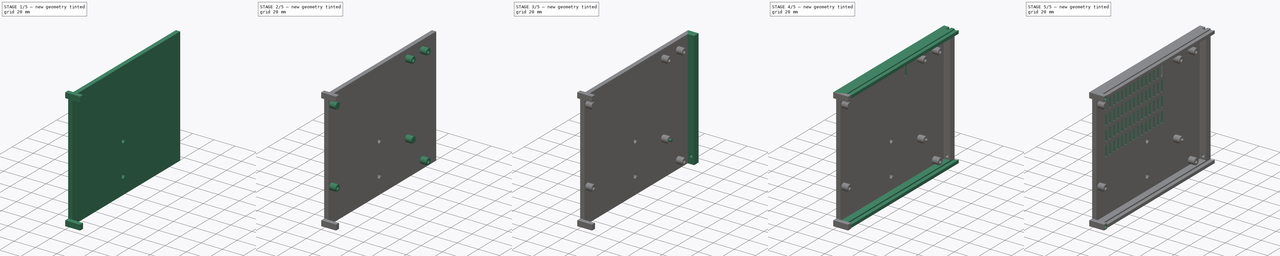
[diagram: build sequence overview — one tinted view per stage of 5, left to right]
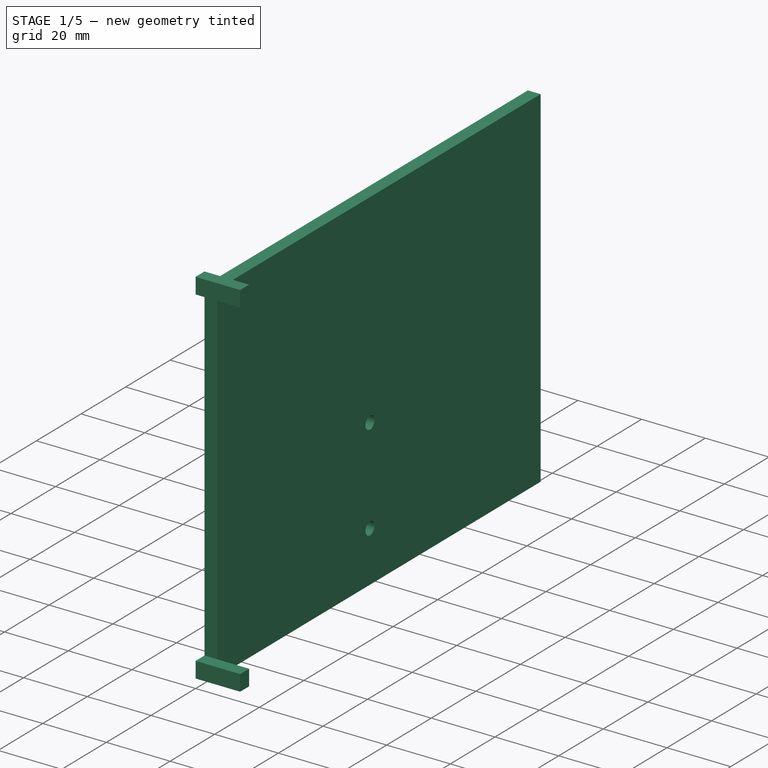
[diagram: stage 1 of 5 — iso view after this stage's code; geometry added in this stage tinted green]
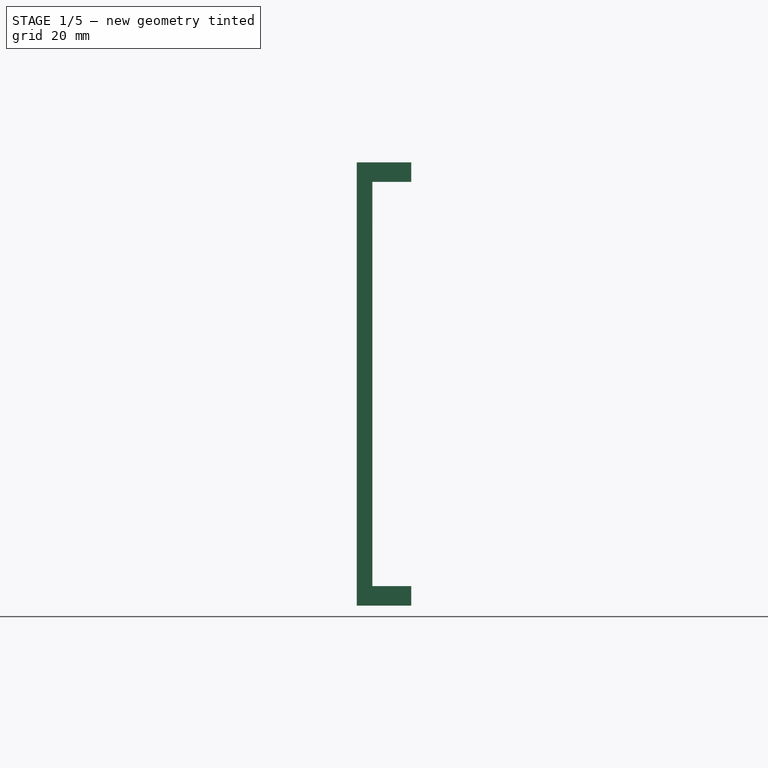
[diagram: stage 1 of 5 — front view after this stage's code; geometry added in this stage tinted green]
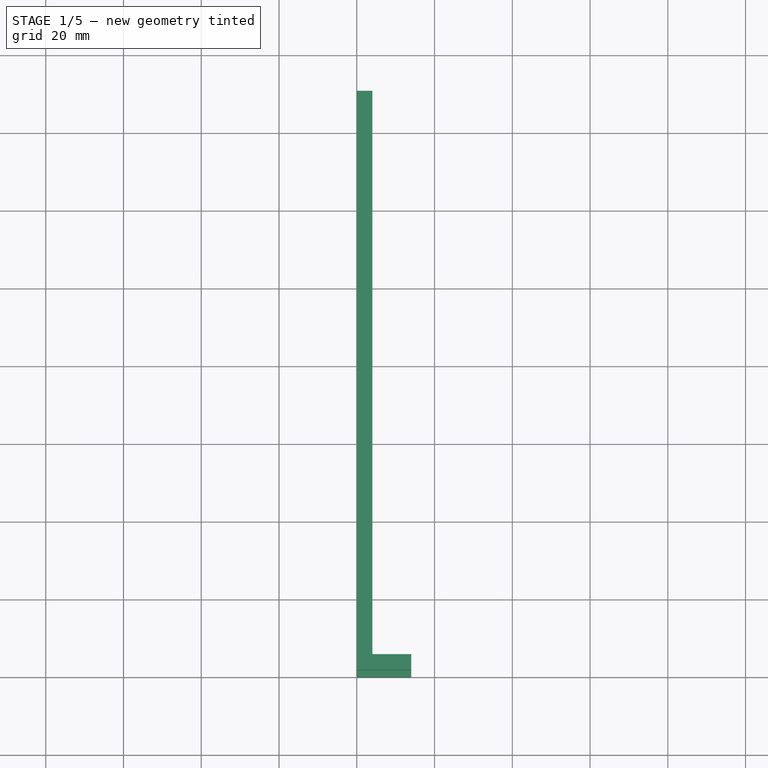
[diagram: stage 1 of 5 — top view after this stage's code; geometry added in this stage tinted green]
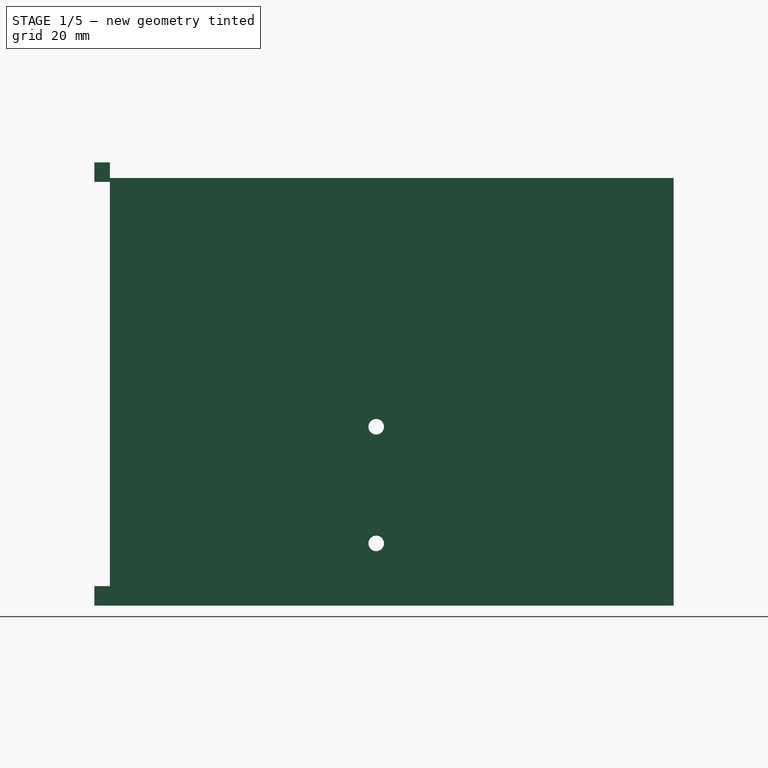
[diagram: stage 1 of 5 — right view after this stage's code; geometry added in this stage tinted green]
FCSTD DOCUMENT  (FreeCAD 1.0R38641 +468 (Git))
Label: Power-Box-Base
License: All rights reserved
LicenseURL: https://en.wikipedia.org/wiki/All_rights_reserved
objects: Sketcher::SketchObject×13, PartDesign::Pad×8, PartDesign::Pocket×6, PartDesign::LinearPattern×2, PartDesign::MultiTransform×1, PartDesign::Body×1
note: 75 computed .brp shape members not serialized (recipe doc carries the construction recipe); baked Part::Feature solids carry a one-line shape summary decoded from their .brp

FEATURE [Sketcher::SketchObject] Sketch130  label="pb-bottom"
  ArcFitTolerance = 1e-06
  AttachmentSupport = -> [YZ_Plane015]
  FullyConstrained = true
  MakeInternals = false
  MapMode = 5
  Placement = pos=(0,0,0) rot=(0.57735,0.57735,0.57735;2.0944rad)
  sketch-geometry (4):
    g0: LineSegment StartX=4 StartY=114 StartZ=0 EndX=4 EndY=4 EndZ=0
    g1: LineSegment StartX=4 StartY=4 StartZ=0 EndX=149 EndY=4 EndZ=0
    g2: LineSegment StartX=149 StartY=4 StartZ=0 EndX=149 EndY=114 EndZ=0
    g3: LineSegment StartX=149 StartY=114 StartZ=0 EndX=4 EndY=114 EndZ=0
  constraints (12):
    c: Coincident(g0,g1)
    c: Coincident(g1,g2)
    c: Coincident(g2,g3)
    c: Coincident(g3,g0)
    c: Vertical(g0)
    c: Vertical(g2)
    c: Horizontal(g1)
    c: Horizontal(g3)
    c: Distance(g0,g2) = 145
    c: Distance(g1,g3) = 110
    c: DistanceY(g-1,g0) = 4
    c: DistanceX(g-1,g0) = 4
FEATURE [PartDesign::Pad] Pad062
  Direction = (1,0,0)
  Length = 4
  Length2 = 10
  Placement = pos=(0,0,0) rot=(1,1,1;2.0944rad)
  Profile = -> Sketch130
  ReferenceAxis = -> Sketch130 [N_Axis]
  Refine = true
  Suppressed = false
  Type = 0
FEATURE [Sketcher::SketchObject] Sketch131  label="pb-back"
  ArcFitTolerance = 1e-06
  AttachmentSupport = -> [XZ_Plane015]
  FullyConstrained = true
  MakeInternals = false
  MapMode = 5
  Placement = pos=(0,0,0) rot=(1,0,0;1.5708rad)
  sketch-geometry (8):
    g0: LineSegment StartX=0 StartY=9 StartZ=0 EndX=0 EndY=4 EndZ=0
    g1: LineSegment StartX=0 StartY=4 StartZ=0 EndX=14 EndY=4 EndZ=0
    g2: LineSegment StartX=14 StartY=4 StartZ=0 EndX=14 EndY=9 EndZ=0
    g3: LineSegment StartX=14 StartY=9 StartZ=0 EndX=0 EndY=9 EndZ=0
    g4: LineSegment StartX=0 StartY=113 StartZ=0 EndX=0 EndY=118 EndZ=0
    g5: LineSegment StartX=0 StartY=118 StartZ=0 EndX=14 EndY=118 EndZ=0
    g6: LineSegment StartX=14 StartY=118 StartZ=0 EndX=14 EndY=113 EndZ=0
    g7: LineSegment StartX=14 StartY=113 StartZ=0 EndX=0 EndY=113 EndZ=0
  constraints (24):
    c: Coincident(g0,g1)
    c: Coincident(g1,g2)
    c: Coincident(g2,g3)
    c: Coincident(g3,g0)
    c: Vertical(g0)
    c: Vertical(g2)
    c: Horizontal(g1)
    c: Horizontal(g3)
    c: Distance(g0,g2) = 14
    c: Distance(g1,g3) = 5
    c: DistanceX(g-1,g0) = 0
    c: DistanceY(g-1,g0) = 4
    c: Coincident(g4,g5)
    c: Coincident(g5,g6)
    c: Coincident(g6,g7)
    c: Coincident(g7,g4)
    c: Vertical(g4)
    c: Vertical(g6)
    c: Horizontal(g5)
    c: Horizontal(g7)
    c: Distance(g4,g6) = 14
    c: Distance(g5,g7) = 5
    c: DistanceX(g-1,g4) = 0
    c: DistanceY(g-1,g4) = 118
FEATURE [PartDesign::Pad] Pad063
  BaseFeature = -> Pad062
  Direction = (0,-1,2e-16)
  Length = 4
  Length2 = 10
  Placement = pos=(0,0,0) rot=(1,1,1;2.0944rad)
  Profile = -> Sketch131
  ReferenceAxis = -> Sketch131 [N_Axis]
  Refine = true
  Reversed = true
  Suppressed = false
  Type = 0
FEATURE [Sketcher::SketchObject] Sketch134  label="pb-bottom-holes"
  ArcFitTolerance = 1e-06
  AttachmentSupport = -> [YZ_Plane015]
  FullyConstrained = true
  MakeInternals = false
  MapMode = 5
  Placement = pos=(0,0,0) rot=(0.57735,0.57735,0.57735;2.0944rad)
  sketch-geometry (2):
    g0: Circle CenterX=72.5 CenterY=50 CenterZ=0 NormalX=0 NormalY=0 NormalZ=1 AngleXU=0 Radius=2
    g1: Circle CenterX=72.5 CenterY=20 CenterZ=0 NormalX=0 NormalY=0 NormalZ=1 AngleXU=0 Radius=2
  constraints (6):
    c: Diameter(g0) = 4
    c: Diameter(g1) = 4
    c: DistanceX(g-1,g0) = 72.5
    c: DistanceY(g1,g0) = 30
    c: DistanceX(g0,g1) = 0
    c: DistanceY(g-1,g0) = 50
FEATURE [PartDesign::Pocket] Pocket079
  BaseFeature = -> Pad063
  Direction = (-1,0,0)
  Length = 5
  Length2 = 5
  Placement = pos=(0,0,0) rot=(1,1,1;2.0944rad)
  Profile = -> Sketch134
  ReferenceAxis = -> Sketch134 [N_Axis]
  Refine = true
  Reversed = true
  Suppressed = false
  Type = 1
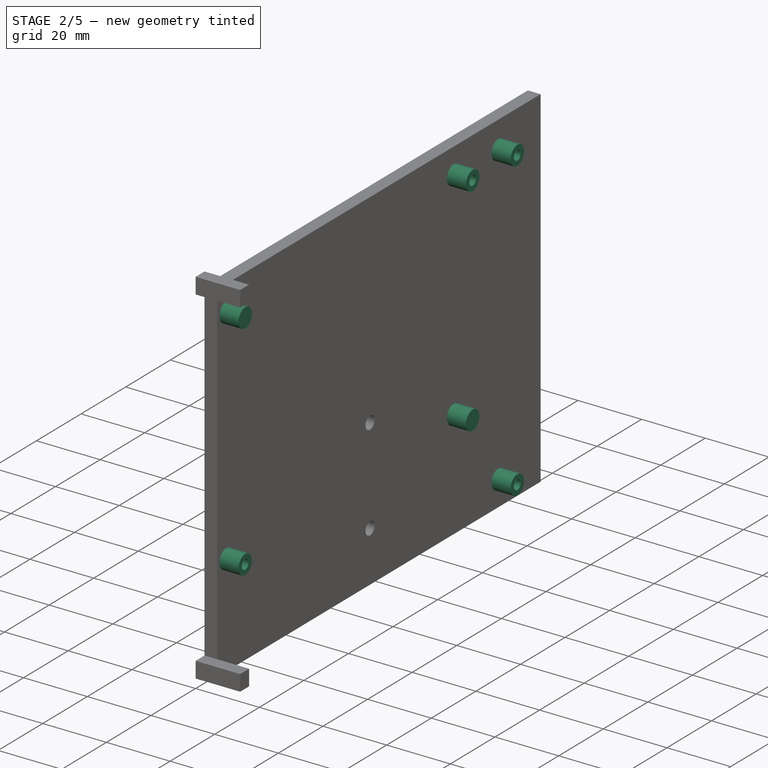
[diagram: stage 2 of 5 — iso view after this stage's code; geometry added in this stage tinted green]
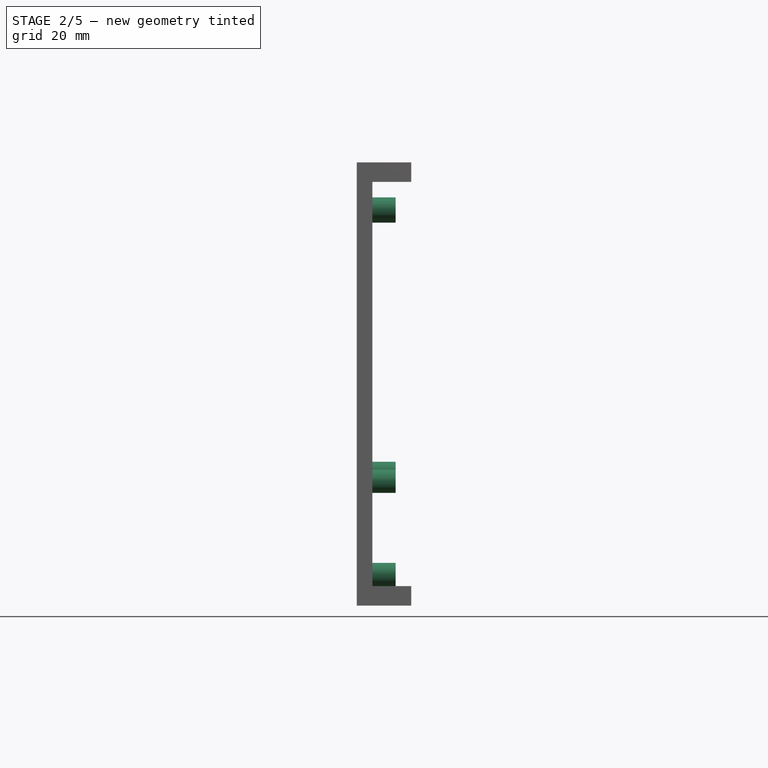
[diagram: stage 2 of 5 — front view after this stage's code; geometry added in this stage tinted green]
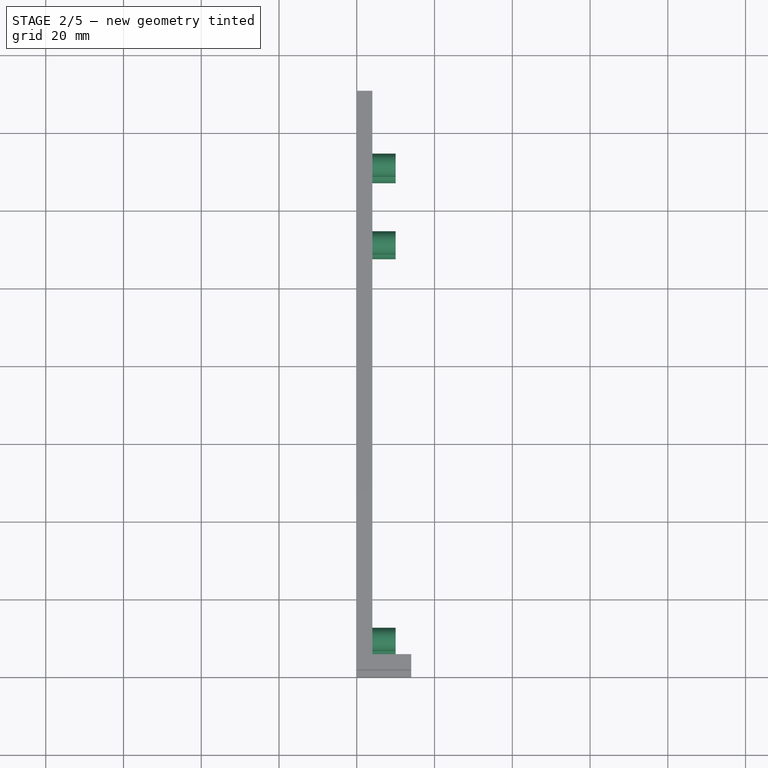
[diagram: stage 2 of 5 — top view after this stage's code; geometry added in this stage tinted green]
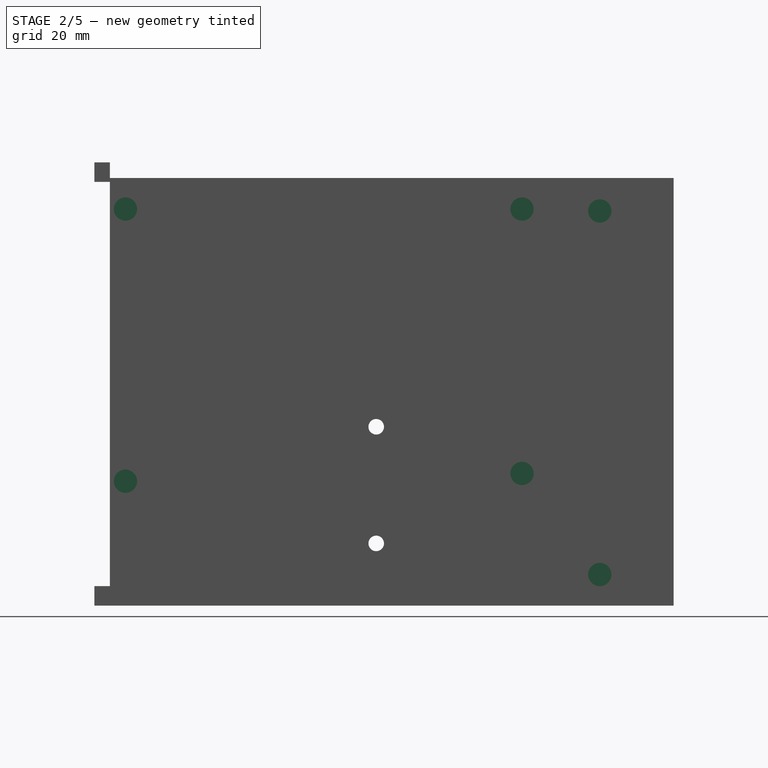
[diagram: stage 2 of 5 — right view after this stage's code; geometry added in this stage tinted green]
FEATURE [Sketcher::SketchObject] Sketch136  label="pb-bottom-screw-hill"
  ArcFitTolerance = 1e-06
  AttachmentSupport = -> [YZ_Plane015]
  FullyConstrained = true
  MakeInternals = false
  MapMode = 5
  Placement = pos=(0,0,0) rot=(0.57735,0.57735,0.57735;2.0944rad)
  sketch-geometry (5):
    g0: Circle CenterX=110 CenterY=106 CenterZ=0 NormalX=0 NormalY=0 NormalZ=1 AngleXU=0 Radius=3
    g1: Circle CenterX=8 CenterY=36 CenterZ=0 NormalX=0 NormalY=0 NormalZ=1 AngleXU=0 Radius=3
    g2: Circle CenterX=130 CenterY=105.5 CenterZ=0 NormalX=0 NormalY=0 NormalZ=1 AngleXU=0 Radius=3
    g3: Circle CenterX=130 CenterY=12 CenterZ=0 NormalX=0 NormalY=0 NormalZ=1 AngleXU=0 Radius=3
    g4: Circle CenterX=8 CenterY=106 CenterZ=0 NormalX=0 NormalY=0 NormalZ=1 AngleXU=0 Radius=3
  constraints (15):
    c: Diameter(g0) = 6
    c: DistanceX(g-1,g0) = 110
    c: DistanceY(g-1,g0) = 106
    c: Diameter(g1) = 6
    c: DistanceX(g-1,g1) = 8
    c: DistanceY(g-1,g1) = 36
    c: Diameter(g2) = 6
    c: Diameter(g3) = 6
    c: DistanceX(g-1,g3) = 130
    c: DistanceX(g3,g2) = 0
    c: DistanceY(g-1,g3) = 12
    c: DistanceY(g3,g2) = 93.5
    c: Diameter(g4) = 6
    c: DistanceY(g-1,g4) = 106
    c: DistanceX(g-1,g4) = 8
FEATURE [PartDesign::Pad] Pad065
  BaseFeature = -> Pocket079
  Direction = (1,0,0)
  Length = 10
  Length2 = 10
  Placement = pos=(0,0,0) rot=(1,1,1;2.0944rad)
  Profile = -> Sketch136
  ReferenceAxis = -> Sketch136 [N_Axis]
  Refine = true
  Suppressed = false
  Type = 0
FEATURE [Sketcher::SketchObject] Sketch137  label="pb-bottom-screw-hole"
  ArcFitTolerance = 1e-06
  AttachmentSupport = -> [Pad065]
  FullyConstrained = true
  MakeInternals = false
  MapMode = 5
  Placement = pos=(10,0,0) rot=(0.57735,0.57735,0.57735;2.0944rad)
  sketch-geometry (4):
    g0: Circle CenterX=110 CenterY=106 CenterZ=0 NormalX=0 NormalY=0 NormalZ=1 AngleXU=0 Radius=1.5
    g1: Circle CenterX=8 CenterY=36 CenterZ=0 NormalX=0 NormalY=0 NormalZ=1 AngleXU=0 Radius=1.5
    g2: Circle CenterX=130 CenterY=12 CenterZ=0 NormalX=0 NormalY=0 NormalZ=1 AngleXU=0 Radius=1.5
    g3: Circle CenterX=130 CenterY=105.5 CenterZ=0 NormalX=0 NormalY=0 NormalZ=1 AngleXU=0 Radius=1.5
  constraints (12):
    c: Diameter(g0) = 3
    c: DistanceX(g-1,g0) = 110
    c: DistanceY(g-1,g0) = 106
    c: Diameter(g1) = 3
    c: DistanceY(g-1,g1) = 36
    c: DistanceX(g-1,g1) = 8
    c: Diameter(g2) = 3
    c: Diameter(g3) = 3
    c: DistanceY(g-1,g2) = 12
    c: DistanceX(g-1,g2) = 130
    c: DistanceX(g3,g2) = 0
    c: DistanceY(g2,g3) = 93.5
FEATURE [PartDesign::Pocket] Pocket081
  BaseFeature = -> Pad065
  Direction = (-1,0,0)
  Length = 5
  Length2 = 5
  Placement = pos=(0,0,0) rot=(1,1,1;2.0944rad)
  Profile = -> Sketch137
  ReferenceAxis = -> Sketch137 [N_Axis]
  Refine = true
  Suppressed = false
  Type = 0
FEATURE [Sketcher::SketchObject] Sketch138  label="pb-bottom-fit-hole-bottom"
  ArcFitTolerance = 1e-06
  AttachmentSupport = -> [YZ_Plane015]
  FullyConstrained = true
  MakeInternals = false
  MapMode = 5
  Placement = pos=(0,0,0) rot=(0.57735,0.57735,0.57735;2.0944rad)
  sketch-geometry (1):
    g0: Circle CenterX=110 CenterY=38 CenterZ=0 NormalX=0 NormalY=0 NormalZ=1 AngleXU=0 Radius=3
  constraints (3):
    c: Diameter(g0) = 6
    c: DistanceX(g-1,g0) = 110
    c: DistanceY(g-1,g0) = 38
FEATURE [PartDesign::Pad] Pad066
  BaseFeature = -> Pocket081
  Direction = (1,0,0)
  Length = 10
  Length2 = 10
  Placement = pos=(0,0,0) rot=(1,1,1;2.0944rad)
  Profile = -> Sketch138
  ReferenceAxis = -> Sketch138 [N_Axis]
  Refine = true
  Suppressed = false
  Type = 0
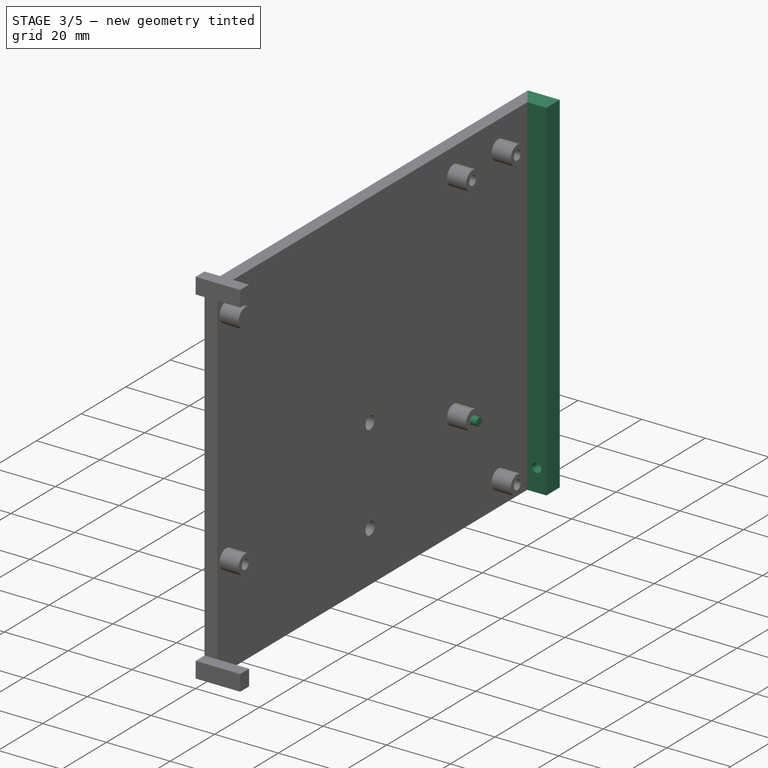
[diagram: stage 3 of 5 — iso view after this stage's code; geometry added in this stage tinted green]
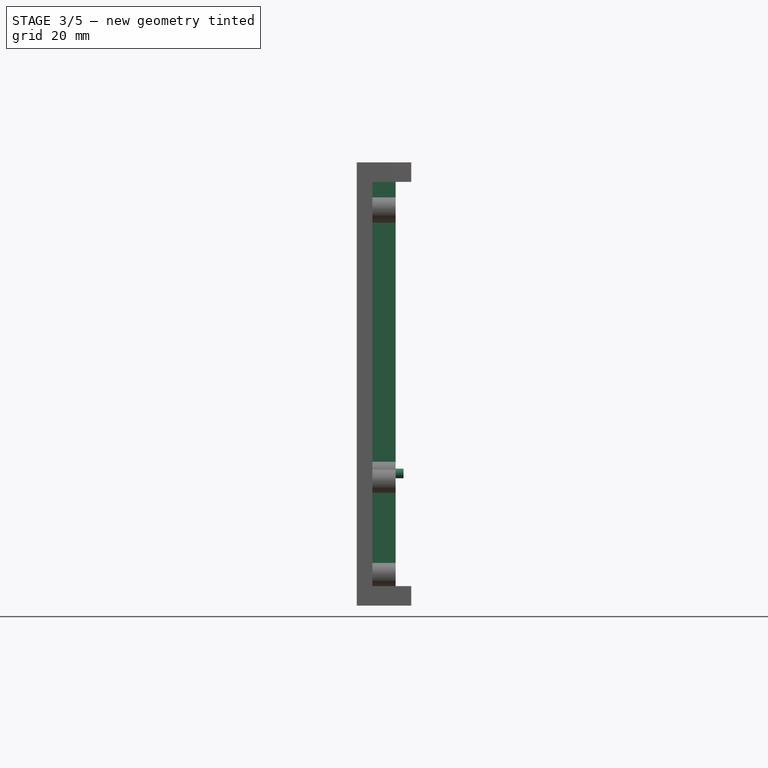
[diagram: stage 3 of 5 — front view after this stage's code; geometry added in this stage tinted green]
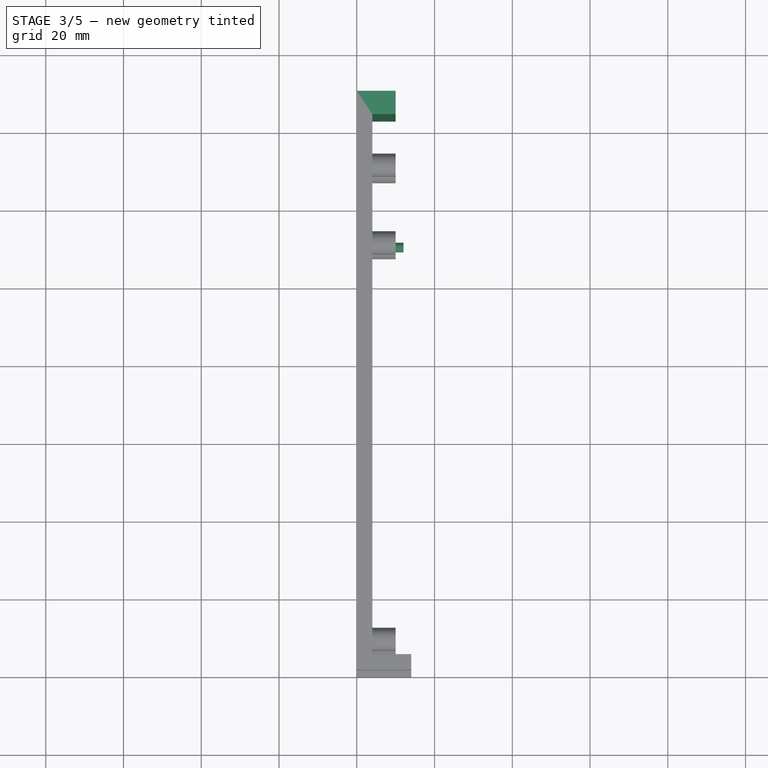
[diagram: stage 3 of 5 — top view after this stage's code; geometry added in this stage tinted green]
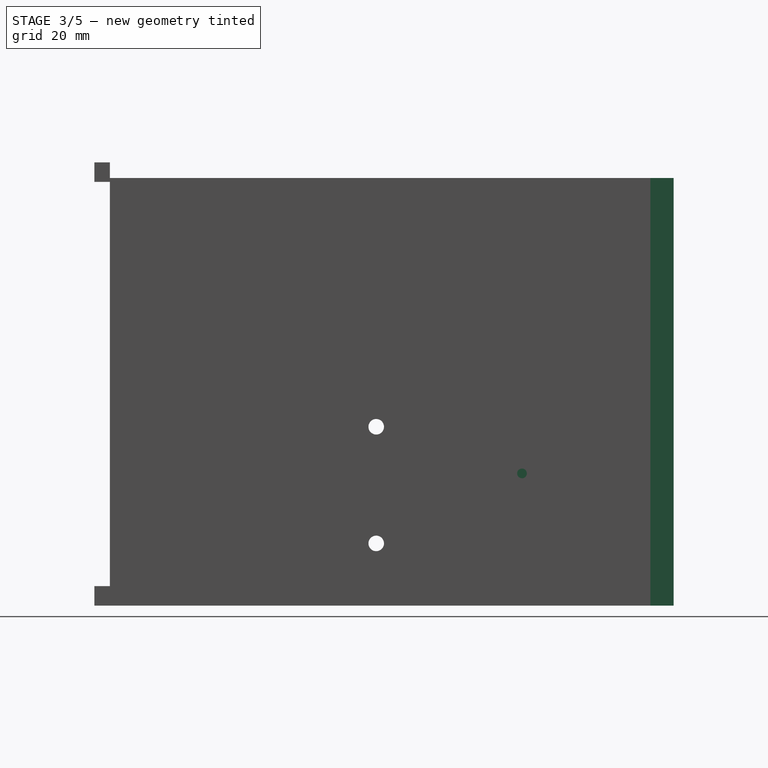
[diagram: stage 3 of 5 — right view after this stage's code; geometry added in this stage tinted green]
FEATURE [Sketcher::SketchObject] Sketch139  label="pb-bottom-fit-hill"
  ArcFitTolerance = 1e-06
  AttachmentSupport = -> [YZ_Plane015]
  FullyConstrained = true
  MakeInternals = false
  MapMode = 5
  Placement = pos=(0,0,0) rot=(0.57735,0.57735,0.57735;2.0944rad)
  sketch-geometry (1):
    g0: Circle CenterX=110 CenterY=38 CenterZ=0 NormalX=0 NormalY=0 NormalZ=1 AngleXU=0 Radius=1.25
  constraints (3):
    c: Diameter(g0) = 2.5
    c: DistanceX(g-1,g0) = 110
    c: DistanceY(g-1,g0) = 38
FEATURE [PartDesign::Pad] Pad067
  BaseFeature = -> Pad066
  Direction = (1,0,0)
  Length = 12
  Length2 = 10
  Placement = pos=(0,0,0) rot=(1,1,1;2.0944rad)
  Profile = -> Sketch139
  ReferenceAxis = -> Sketch139 [N_Axis]
  Refine = true
  Suppressed = false
  Type = 0
FEATURE [Sketcher::SketchObject] Sketch142  label="pb-front-montage"
  ArcFitTolerance = 1e-06
  FullyConstrained = true
  MakeInternals = false
  MapMode = 5
  Placement = pos=(2.606e-13,149,-1.965e-13) rot=(0.57735,0.57735,0.57735;4.18879rad)
  sketch-geometry (4):
    g0: LineSegment StartX=4 StartY=10 StartZ=0 EndX=4 EndY=4 EndZ=0
    g1: LineSegment StartX=4 StartY=4 StartZ=0 EndX=114 EndY=4 EndZ=0
    g2: LineSegment StartX=114 StartY=4 StartZ=0 EndX=114 EndY=10 EndZ=0
    g3: LineSegment StartX=114 StartY=10 StartZ=0 EndX=4 EndY=10 EndZ=0
  constraints (12):
    c: Coincident(g0,g1)
    c: Coincident(g1,g2)
    c: Coincident(g2,g3)
    c: Coincident(g3,g0)
    c: Vertical(g0)
    c: Vertical(g2)
    c: Horizontal(g1)
    c: Horizontal(g3)
    c: Distance(g0,g2) = 110
    c: Distance(g1,g3) = 6
    c: DistanceY(g-1,g0) = 4
    c: DistanceX(g-1,g0) = 4
FEATURE [PartDesign::Pad] Pad086
  BaseFeature = -> Pad067
  Direction = (1.8e-15,1,-1.8e-15)
  Length = 6
  Length2 = 10
  Placement = pos=(0,0,0) rot=(1,1,1;2.0944rad)
  Profile = -> Sketch142
  ReferenceAxis = -> Sketch142 [N_Axis]
  Refine = true
  Reversed = true
  Suppressed = false
  Type = 0
FEATURE [Sketcher::SketchObject] Sketch143  label="pb-front-montage-holes"
  ArcFitTolerance = 1e-06
  FullyConstrained = true
  MakeInternals = false
  MapMode = 5
  Placement = pos=(2.604e-13,149,-1.748e-13) rot=(0.57735,0.57735,0.57735;4.18879rad)
  sketch-geometry (1):
    g0: Circle CenterX=11 CenterY=7 CenterZ=0 NormalX=0 NormalY=0 NormalZ=1 AngleXU=0 Radius=1.4
  constraints (3):
    c: Diameter(g0) = 2.8
    c: DistanceY(g-1,g0) = 7
    c: DistanceX(g-1,g0) = 11
FEATURE [PartDesign::Pocket] Pocket105
  BaseFeature = -> Pad086
  Direction = (-1.6e-15,-1,1e-15)
  Length = 7
  Length2 = 5
  Placement = pos=(0,0,0) rot=(1,1,1;2.0944rad)
  Profile = -> Sketch143
  ReferenceAxis = -> Sketch143 [N_Axis]
  Refine = true
  Suppressed = false
  Type = 0
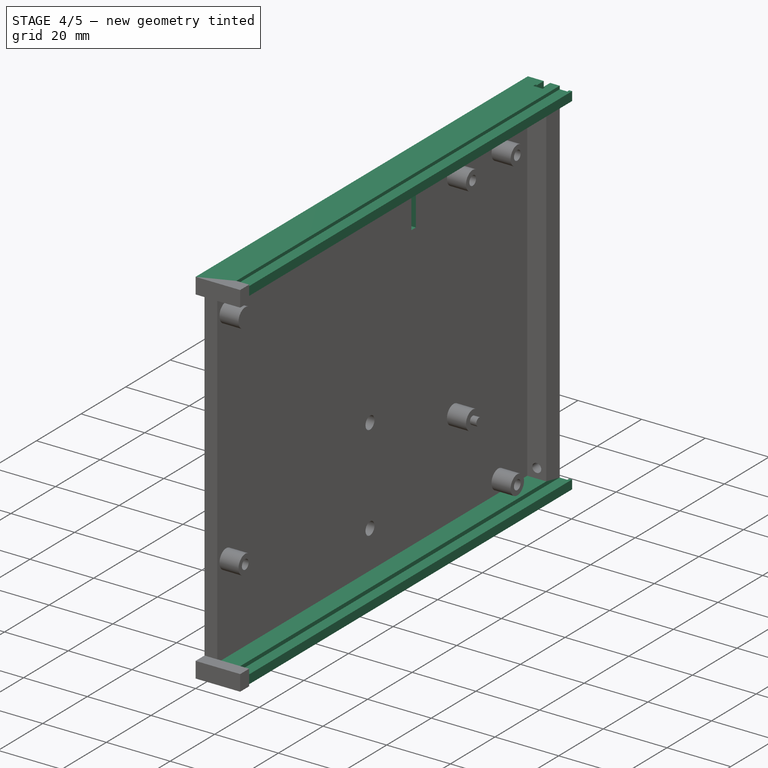
[diagram: stage 4 of 5 — iso view after this stage's code; geometry added in this stage tinted green]
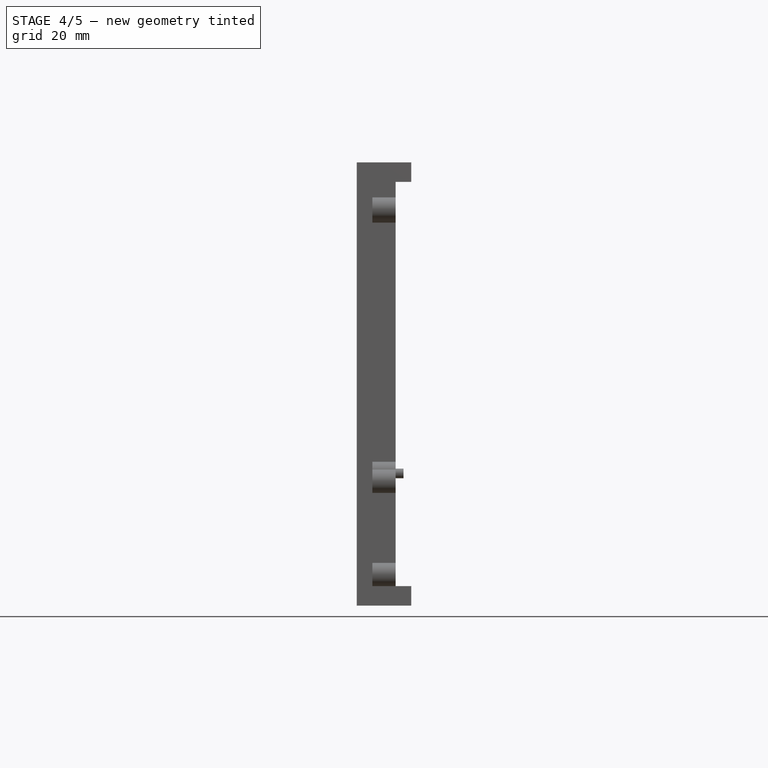
[diagram: stage 4 of 5 — front view after this stage's code; geometry added in this stage tinted green]
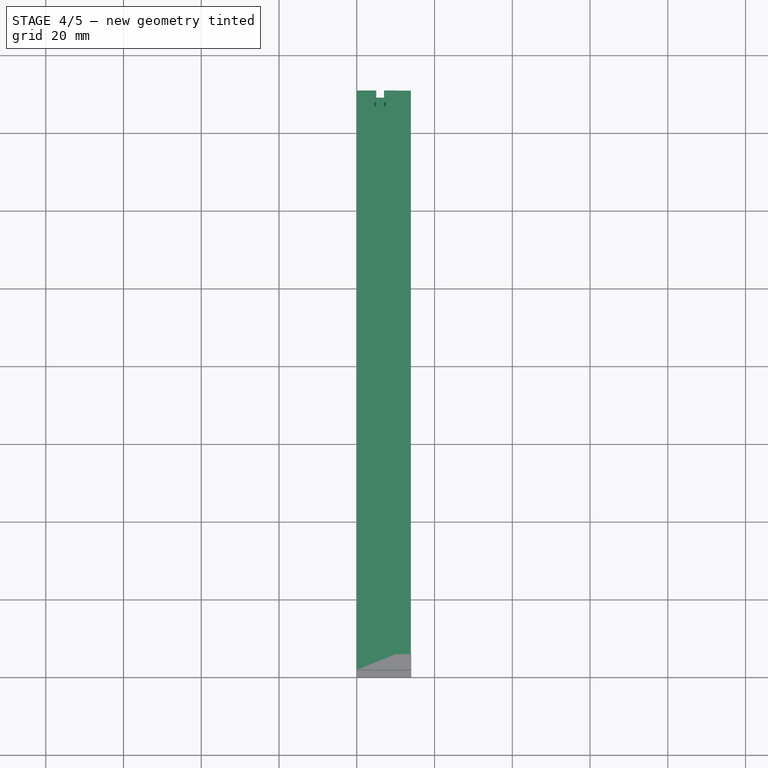
[diagram: stage 4 of 5 — top view after this stage's code; geometry added in this stage tinted green]
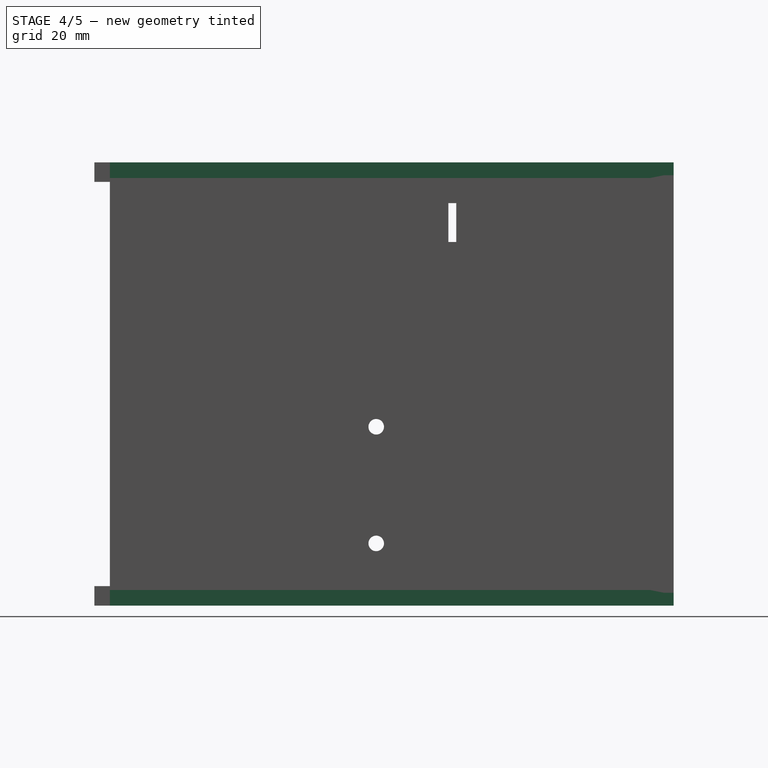
[diagram: stage 4 of 5 — right view after this stage's code; geometry added in this stage tinted green]
FEATURE [Sketcher::SketchObject] Sketch160  label="pb-bottom-mazgal"
  ArcFitTolerance = 1e-06
  AttachmentSupport = -> [YZ_Plane015]
  FullyConstrained = false
  MakeInternals = false
  MapMode = 5
  Placement = pos=(0,0,0) rot=(0.57735,0.57735,0.57735;2.0944rad)
  sketch-geometry (4):
    g0: LineSegment StartX=93.0678 StartY=97.5157 StartZ=0 EndX=93.0678 EndY=107.516 EndZ=0
    g1: LineSegment StartX=93.0678 StartY=107.516 StartZ=0 EndX=91.0678 EndY=107.516 EndZ=0
    g2: LineSegment StartX=91.0678 StartY=107.516 StartZ=0 EndX=91.0678 EndY=97.5157 EndZ=0
    g3: LineSegment StartX=91.0678 StartY=97.5157 StartZ=0 EndX=93.0678 EndY=97.5157 EndZ=0
  constraints (10):
    c: Coincident(g0,g1)
    c: Coincident(g1,g2)
    c: Coincident(g2,g3)
    c: Coincident(g3,g0)
    c: Vertical(g0)
    c: Vertical(g2)
    c: Horizontal(g1)
    c: Horizontal(g3)
    c: Distance(g0,g2) = 2
    c: Distance(g1,g3) = 10
FEATURE [PartDesign::LinearPattern] LinearPattern004
  Direction = -> Sketch160 [H_Axis]
  Length = 75
  Mode = 0
  Occurrences = 15
  Offset = 5.35714
  Placement = pos=(0,0,0) rot=(1,1,1;2.0944rad)
  Refine = true
  Reversed = true
  Suppressed = false
  TransformMode = 0
FEATURE [PartDesign::LinearPattern] LinearPattern005
  Direction = -> Sketch160 [V_Axis]
  Length = 40
  Mode = 0
  Occurrences = 4
  Offset = 13.3333
  Placement = pos=(0,0,0) rot=(1,1,1;2.0944rad)
  Refine = true
  Reversed = true
  Suppressed = false
  TransformMode = 0
FEATURE [Sketcher::SketchObject] Sketch165  label="pb-base-front-trail"
  ArcFitTolerance = 1e-06
  AttachmentSupport = -> [XY_Plane015]
  FullyConstrained = true
  MakeInternals = false
  MapMode = 5
  sketch-geometry (8):
    g0: LineSegment StartX=7.5 StartY=146 StartZ=0 EndX=7.5 EndY=145 EndZ=0
    g1: LineSegment StartX=7.5 StartY=145 StartZ=0 EndX=4.5 EndY=145 EndZ=0
    g2: LineSegment StartX=4.5 StartY=145 StartZ=0 EndX=4.5 EndY=146 EndZ=0
    g3: LineSegment StartX=4.5 StartY=146 StartZ=0 EndX=7.5 EndY=146 EndZ=0
    g4: LineSegment StartX=5 StartY=149 StartZ=0 EndX=7 EndY=149 EndZ=0
    g5: LineSegment StartX=7 StartY=149 StartZ=0 EndX=7 EndY=146 EndZ=0
    g6: LineSegment StartX=7 StartY=146 StartZ=0 EndX=5 EndY=146 EndZ=0
    g7: LineSegment StartX=5 StartY=146 StartZ=0 EndX=5 EndY=149 EndZ=0
  constraints (24):
    c: Coincident(g0,g1)
    c: Coincident(g1,g2)
    c: Coincident(g2,g3)
    c: Coincident(g3,g0)
    c: Vertical(g0)
    c: Vertical(g2)
    c: Horizontal(g1)
    c: Horizontal(g3)
    c: Distance(g0,g2) = 3
    c: Distance(g1,g3) = 1
    c: Coincident(g4,g5)
    c: Coincident(g5,g6)
    c: Coincident(g6,g7)
    c: Coincident(g7,g4)
    c: Horizontal(g4)
    c: Horizontal(g6)
    c: Vertical(g5)
    c: Vertical(g7)
    c: Distance(g5,g7) = 2
    c: Distance(g4,g6) = 3
    c: DistanceY(g-1,g2) = 146
    c: DistanceX(g-1,g2) = 4.5
    c: DistanceX(g-1,g4) = 5
    c: DistanceY(g-1,g4) = 149
FEATURE [Sketcher::SketchObject] Sketch183  label="pb-base-side-trails"
  ArcFitTolerance = 1e-06
  AttachmentSupport = -> [XZ_Plane015]
  FullyConstrained = true
  MakeInternals = false
  MapMode = 5
  Placement = pos=(0,0,0) rot=(1,0,0;1.5708rad)
  sketch-geometry (24):
    g0: LineSegment StartX=0 StartY=118 StartZ=0 EndX=0 EndY=114 EndZ=0
    g1: LineSegment StartX=0 StartY=114 StartZ=0 EndX=10 EndY=114 EndZ=0
    g2: LineSegment StartX=10 StartY=114 StartZ=0 EndX=10 EndY=118 EndZ=0
    g3: LineSegment StartX=10 StartY=118 StartZ=0 EndX=0 EndY=118 EndZ=0
    g4: LineSegment StartX=10 StartY=117 StartZ=0 EndX=10 EndY=115.2 EndZ=0
    g5: LineSegment StartX=10 StartY=115.2 StartZ=0 EndX=13 EndY=115.2 EndZ=0
    g6: LineSegment StartX=13 StartY=115.2 StartZ=0 EndX=13 EndY=117 EndZ=0
    g7: LineSegment StartX=13 StartY=117 StartZ=0 EndX=10 EndY=117 EndZ=0
    g8: LineSegment StartX=13 StartY=117.5 StartZ=0 EndX=13 EndY=114.7 EndZ=0
    g9: LineSegment StartX=13 StartY=114.7 StartZ=0 EndX=13.9 EndY=114.7 EndZ=0
    g10: LineSegment StartX=13.9 StartY=114.7 StartZ=0 EndX=13.9 EndY=117.5 EndZ=0
    g11: LineSegment StartX=13.9 StartY=117.5 StartZ=0 EndX=13 EndY=117.5 EndZ=0
    g12: LineSegment StartX=0 StartY=8 StartZ=0 EndX=0 EndY=4 EndZ=0
    g13: LineSegment StartX=0 StartY=4 StartZ=0 EndX=10 EndY=4 EndZ=0
    g14: LineSegment StartX=10 StartY=4 StartZ=0 EndX=10 EndY=8 EndZ=0
    g15: LineSegment StartX=10 StartY=8 StartZ=0 EndX=0 EndY=8 EndZ=0
    g16: LineSegment StartX=10 StartY=5 StartZ=0 EndX=10 EndY=6.8 EndZ=0
    g17: LineSegment StartX=10 StartY=6.8 StartZ=0 EndX=13 EndY=6.8 EndZ=0
    g18: LineSegment StartX=13 StartY=6.8 StartZ=0 EndX=13 EndY=5 EndZ=0
    g19: LineSegment StartX=13 StartY=5 StartZ=0 EndX=10 EndY=5 EndZ=0
    g20: LineSegment StartX=13 StartY=7.3 StartZ=0 EndX=13 EndY=4.5 EndZ=0
    g21: LineSegment StartX=13 StartY=4.5 StartZ=0 EndX=13.9 EndY=4.5 EndZ=0
    g22: LineSegment StartX=13.9 StartY=4.5 StartZ=0 EndX=13.9 EndY=7.3 EndZ=0
    g23: LineSegment StartX=13.9 StartY=7.3 StartZ=0 EndX=13 EndY=7.3 EndZ=0
  constraints (72):
    c: Coincident(g0,g1)
    c: Coincident(g1,g2)
    c: Coincident(g2,g3)
    c: Coincident(g3,g0)
    c: Vertical(g0)
    c: Vertical(g2)
    c: Horizontal(g1)
    c: Horizontal(g3)
    c: Distance(g0,g2) = 10
    c: Distance(g1,g3) = 4
    c: DistanceX(g-1,g0) = 0
    c: DistanceY(g-1,g0) = 114
    c: Coincident(g4,g5)
    c: Coincident(g5,g6)
    c: Coincident(g6,g7)
    c: Coincident(g7,g4)
    c: Vertical(g4)
    c: Vertical(g6)
    c: Horizontal(g5)
    c: Horizontal(g7)
    c: Distance(g4,g6) = 3
    c: Distance(g5,g7) = 1.8
    c: DistanceX(g2,g4) = 0
    c: Coincident(g8,g9)
    c: Coincident(g9,g10)
    c: Coincident(g10,g11)
    c: Coincident(g11,g8)
    c: Vertical(g8)
    c: Vertical(g10)
    c: Horizontal(g9)
    c: Horizontal(g11)
    c: Distance(g8,g10) = 0.9
    c: Distance(g9,g11) = 2.8
    c: DistanceX(g6,g8) = 0
    c: DistanceY(g6,g8) = 0.5
    c: DistanceY(g4,g2) = 1
    c: Coincident(g12,g13)
    c: Coincident(g13,g14)
    c: Coincident(g14,g15)
    c: Coincident(g15,g12)
    c: Vertical(g12)
    c: Vertical(g14)
    c: Horizontal(g13)
    c: Horizontal(g15)
    c: Distance(g12,g14) = 10
    c: Distance(g13,g15) = 4
    c: DistanceX(g-1,g12) = 0
    c: DistanceY(g-1,g12) = 4
    c: Coincident(g16,g17)
    c: Coincident(g17,g18)
    c: Coincident(g18,g19)
    c: Coincident(g19,g16)
    c: Vertical(g16)
    c: Vertical(g18)
    c: Horizontal(g17)
    c: Horizontal(g19)
    c: Distance(g16,g18) = 3
    c: Distance(g17,g19) = 1.8
    c: DistanceX(g14,g16) = 0
    c: Coincident(g20,g21)
    c: Coincident(g21,g22)
    c: Coincident(g22,g23)
    c: Coincident(g23,g20)
    c: Vertical(g20)
    c: Vertical(g22)
    c: Horizontal(g21)
    c: Horizontal(g23)
    c: Distance(g20,g22) = 0.9
    c: Distance(g21,g23) = 2.8
    c: DistanceX(g18,g20) = 0
    c: DistanceY(g13,g16) = 1
    c: DistanceY(g20,g18) = 0.5
FEATURE [PartDesign::Pad] Pad087
  BaseFeature = -> Pocket105
  Direction = (0,-1,2e-16)
  Length = 149
  Length2 = 10
  Placement = pos=(0,0,0) rot=(1,1,1;2.0944rad)
  Profile = -> Sketch183
  ReferenceAxis = -> Sketch183 [N_Axis]
  Refine = true
  Reversed = true
  Suppressed = false
  Type = 0
FEATURE [PartDesign::Pocket] Pocket106
  BaseFeature = -> Pad087
  Direction = (0,0,-1)
  Length = 118
  Length2 = -14
  Placement = pos=(0,0,0) rot=(1,1,1;2.0944rad)
  Profile = -> Sketch165
  ReferenceAxis = -> Sketch165 [N_Axis]
  Refine = true
  Reversed = true
  Suppressed = false
  Type = 4
FEATURE [PartDesign::Pocket] Pocket107
  BaseFeature = -> Pocket106
  Direction = (-1,0,0)
  Length = 5
  Length2 = 5
  Placement = pos=(0,0,0) rot=(1,1,1;2.0944rad)
  Profile = -> Sketch160
  ReferenceAxis = -> Sketch160 [N_Axis]
  Refine = true
  Reversed = true
  Suppressed = false
  Type = 0
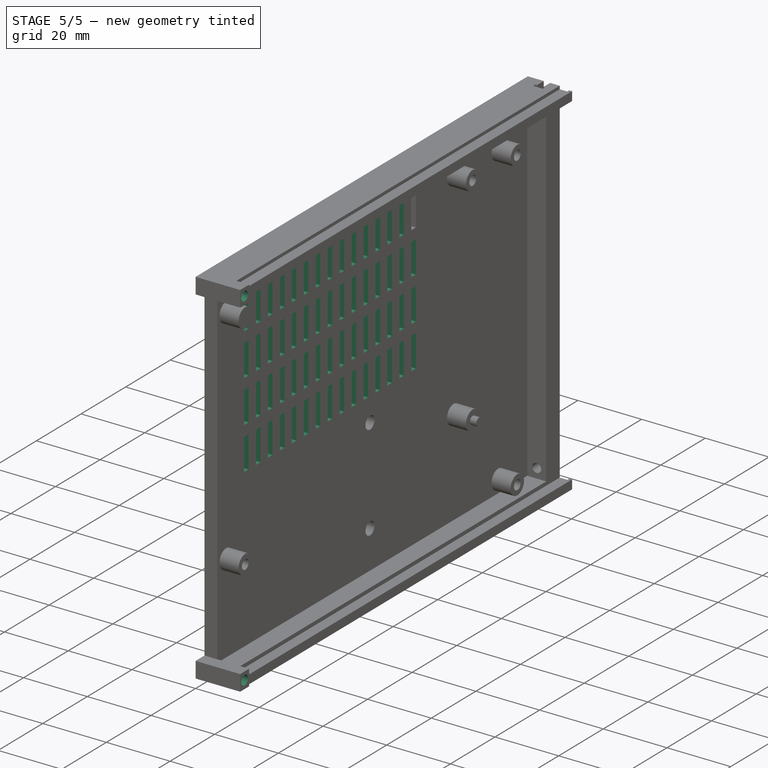
[diagram: stage 5 of 5 — iso view after this stage's code; geometry added in this stage tinted green]
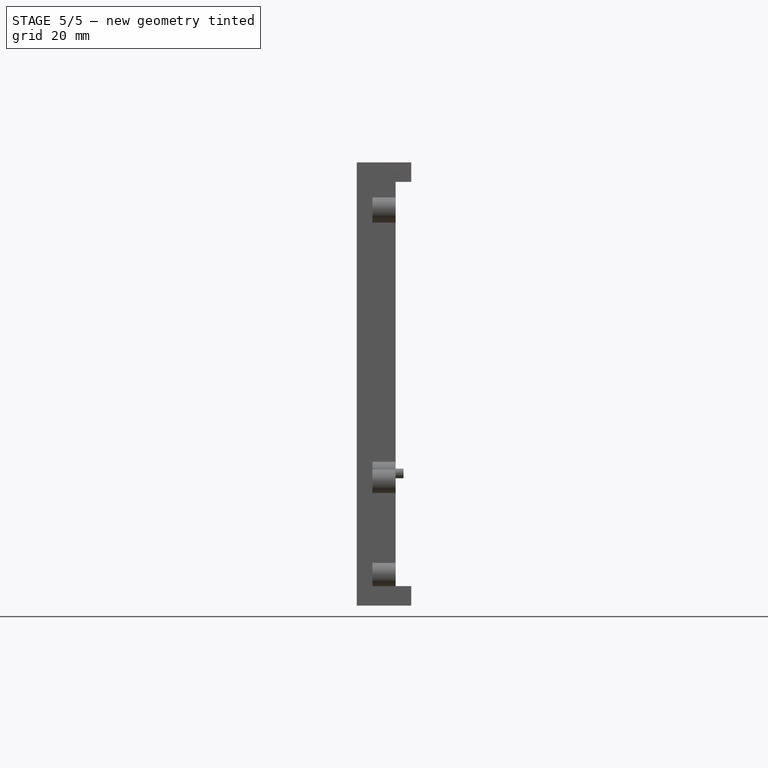
[diagram: stage 5 of 5 — front view after this stage's code; geometry added in this stage tinted green]
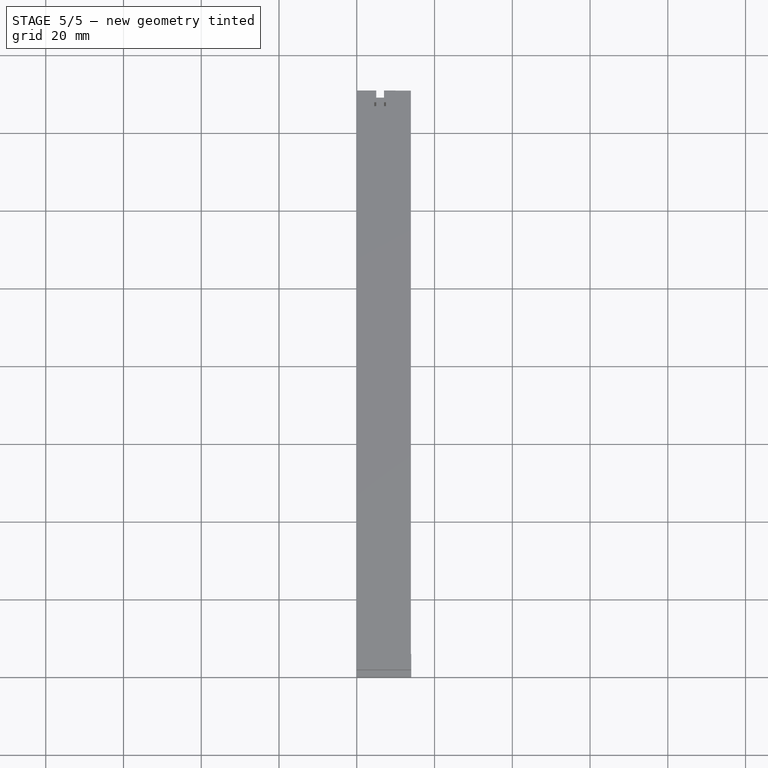
[diagram: stage 5 of 5 — top view after this stage's code; geometry added in this stage tinted green]
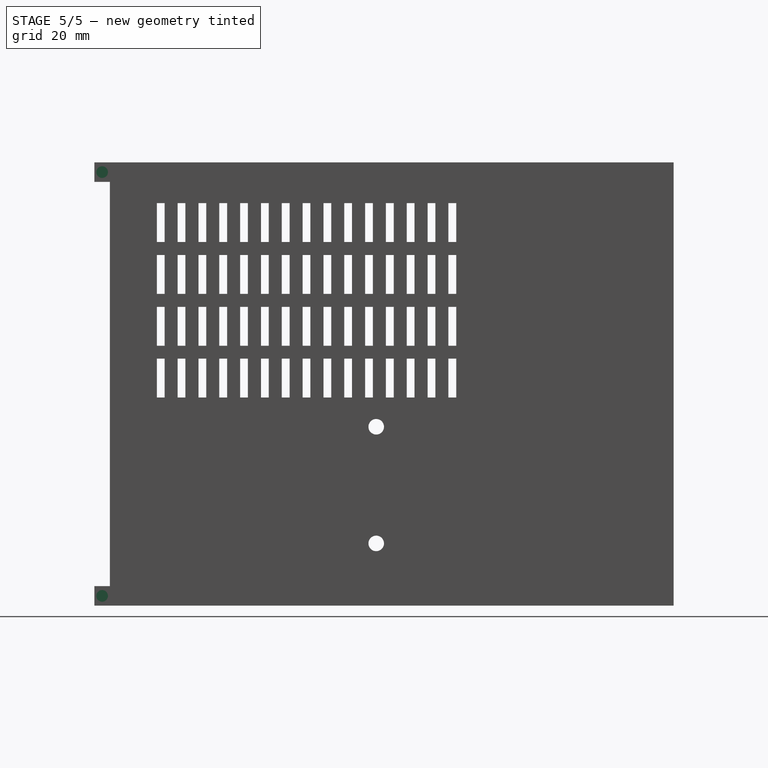
[diagram: stage 5 of 5 — right view after this stage's code; geometry added in this stage tinted green]
FEATURE [PartDesign::MultiTransform] MultiTransform002
  BaseFeature = -> Pocket107
  Originals = -> [Pocket107]
  Placement = pos=(0,0,0) rot=(1,1,1;2.0944rad)
  Refine = true
  Suppressed = false
  TransformMode = 0
  Transformations = -> [LinearPattern004,LinearPattern005]
FEATURE [PartDesign::Pad] Pad101
  BaseFeature = -> MultiTransform002
  Direction = (0,-1,2e-16)
  Length = 4
  Length2 = 10
  Placement = pos=(0,0,0) rot=(1,1,1;2.0944rad)
  Profile = -> Sketch131
  ReferenceAxis = -> Sketch131 [N_Axis]
  Refine = true
  Reversed = true
  Suppressed = false
  Type = 0
FEATURE [Sketcher::SketchObject] Sketch205  label="pb-base-back-pin-holes"
  ArcFitTolerance = 1e-06
  AttachmentSupport = -> [Pad101]
  FullyConstrained = true
  MakeInternals = false
  MapMode = 5
  Placement = pos=(14,-2.8e-14,1.71e-14) rot=(0.57735,0.57735,0.57735;2.0944rad)
  sketch-geometry (2):
    g0: Circle CenterX=2 CenterY=6.5 CenterZ=0 NormalX=0 NormalY=0 NormalZ=1 AngleXU=0 Radius=1.5
    g1: Circle CenterX=2 CenterY=115.5 CenterZ=0 NormalX=0 NormalY=0 NormalZ=1 AngleXU=0 Radius=1.5
  constraints (6):
    c: Diameter(g0) = 3
    c: Diameter(g1) = 3
    c: DistanceX(g-1,g0) = 2
    c: DistanceX(g-1,g1) = 2
    c: DistanceY(g-1,g0) = 6.5
    c: DistanceY(g-1,g1) = 115.5
FEATURE [PartDesign::Pocket] Pocket119
  BaseFeature = -> Pad101
  Direction = (-1,2e-15,-1.1e-15)
  Length = 10
  Length2 = 5
  Placement = pos=(0,0,0) rot=(1,1,1;2.0944rad)
  Profile = -> Sketch205
  ReferenceAxis = -> Sketch205 [N_Axis]
  Refine = true
  Suppressed = false
  Type = 0
FEATURE [PartDesign::Body] Body015  label="Power-Box-Base"
  AllowCompound = false
  Group = -> [Sketch130,Pad062,Sketch131,Pad063,Sketch134,Pocket079,Sketch136,Pad065,Sketch137,Pocket081,Sketch138,Pad066,Sketch139,Pad067,Sketch142,Sketch143,Sketch160,Sketch165,Sketch183,Pad086,Pocket105,Pad087,Pocket106,Pocket107,MultiTransform002,LinearPattern004,LinearPattern005,Pad101,Sketch205,Pocket119]
  Origin = -> Origin015
  Tip = -> Pocket119
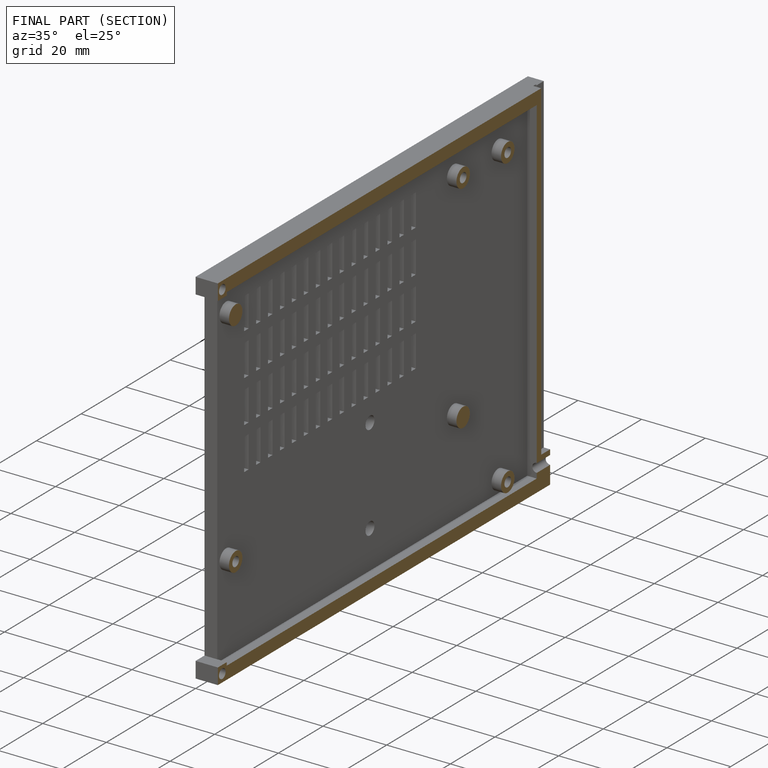
[diagram: finished part — half-section view (interior)]
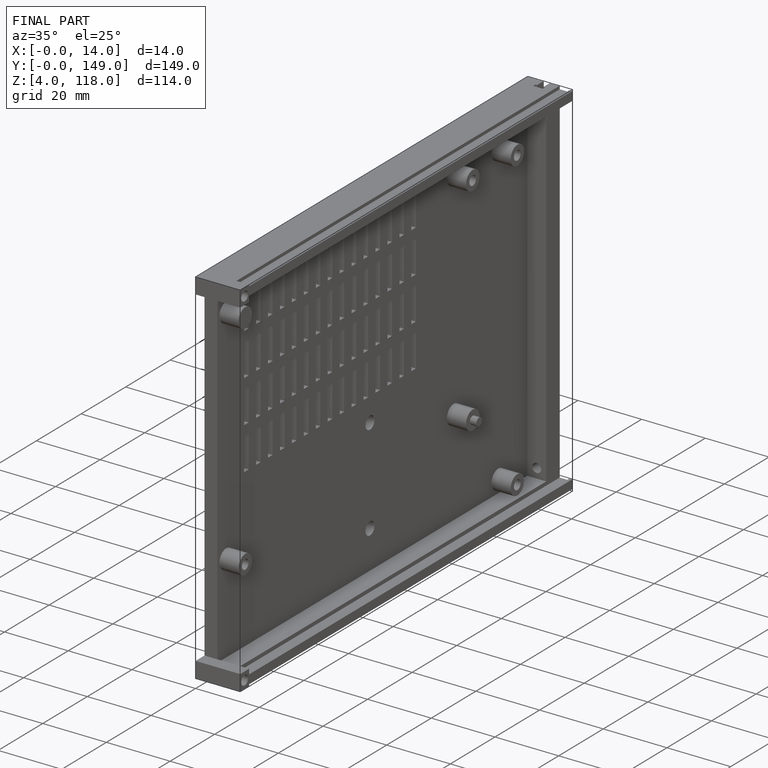
[diagram: finished part — iso view with bounding-box wireframe]
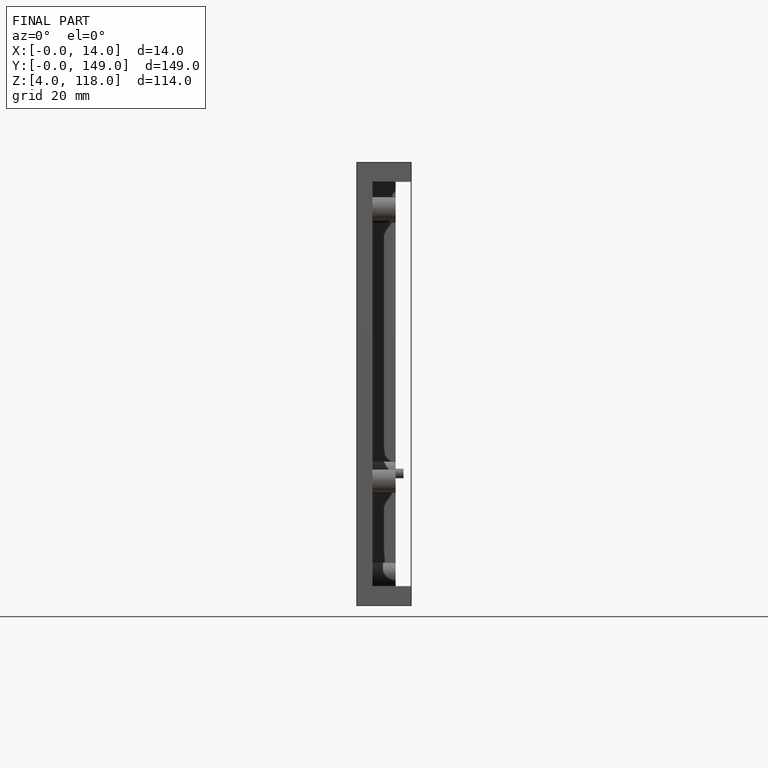
[diagram: finished part — front view with bounding-box wireframe]
